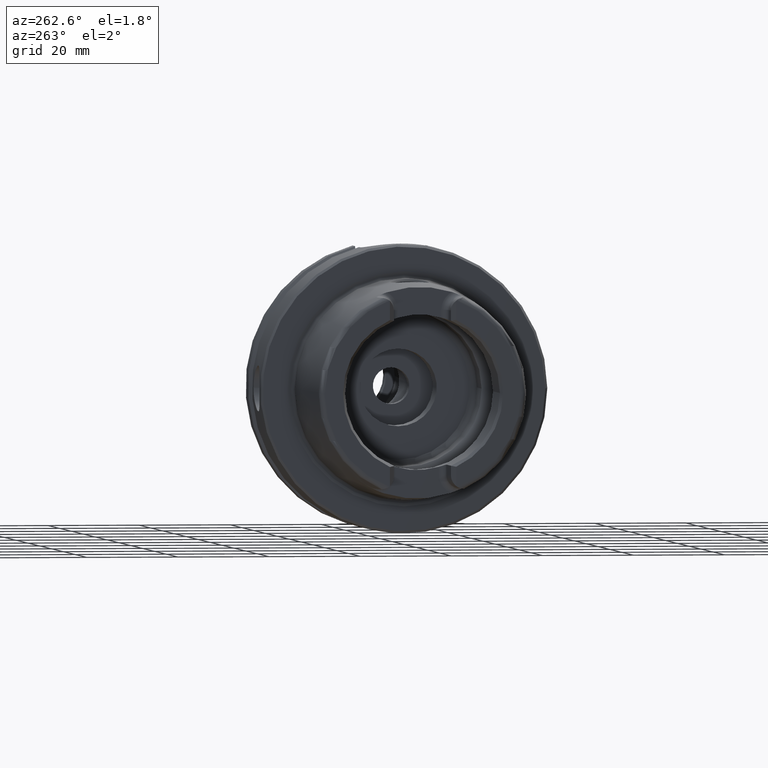
[diagram: clean part render]
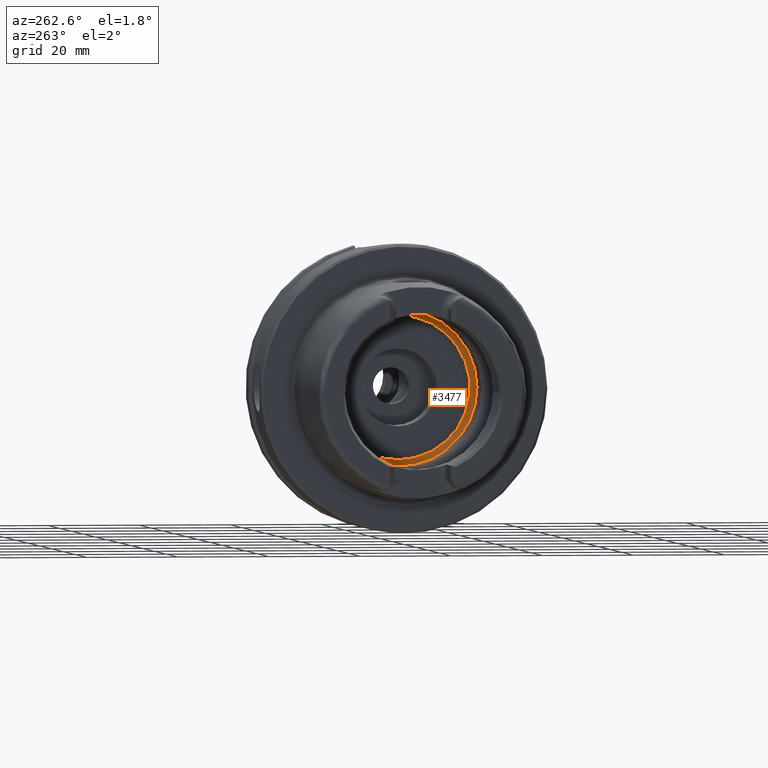
[diagram: same view with one face highlighted and labeled with its STEP entity id]
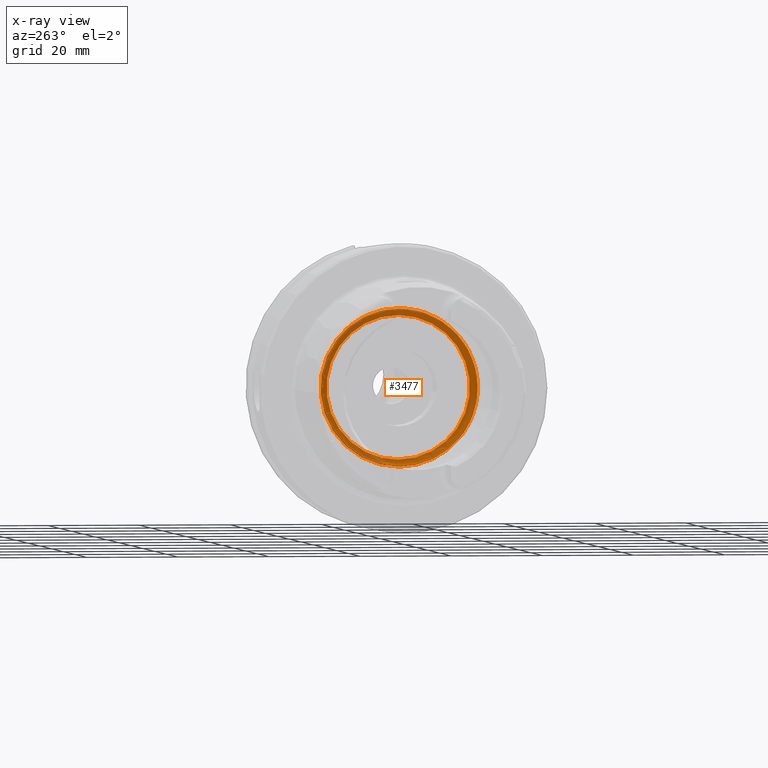
[diagram: x-ray of the same camera — body ghosted, the highlighted face saturated]
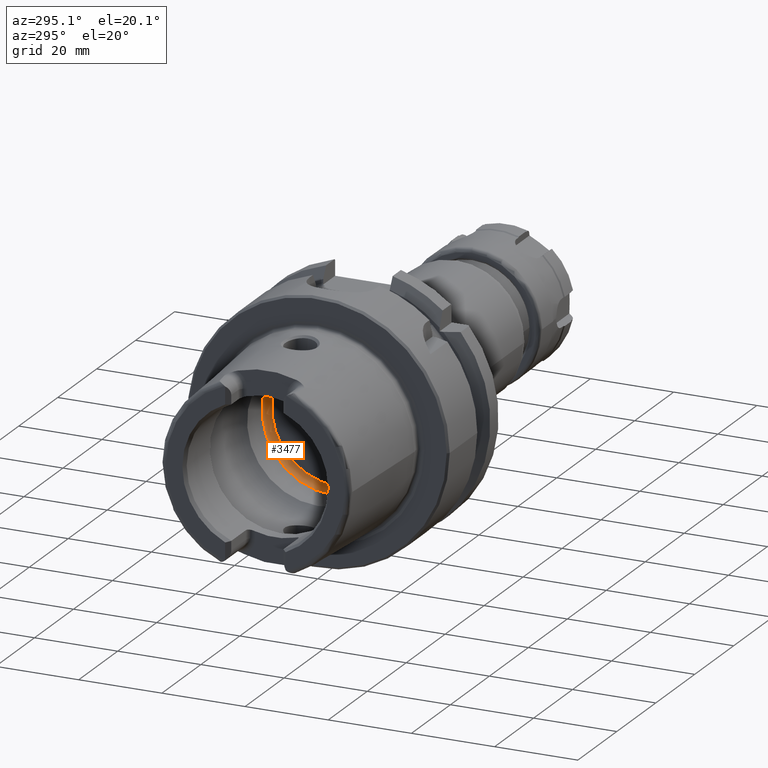
[diagram: same view with one face highlighted and labeled with its STEP entity id]
A machine part, auxiliary view. The second image highlights one B-rep face of the part: STEP entity #3477.
The next image is the same camera in x-ray: the body ghosted, the highlighted face saturated — about 47% of this face is hidden behind the body in this view.
A second angle (auxiliary view) of the same face is appended — the face is thin or edge-on in the first view.
In plain terms, the highlighted toroidal blend (fillet) surface has major radius 15.75 mm and minor (blend) radius 1.5 mm.
Its self-contained STEP definition (entity closure, byte-faithful):
#277=TOROIDAL_SURFACE('',#3874,15.75,1.5);
#456=FACE_OUTER_BOUND('',#666,.T.);
#666=EDGE_LOOP('',(#2847,#2848,#2849,#2850,#2851));
#1254=CIRCLE('',#3873,15.75);
#1255=CIRCLE('',#3875,1.5);
#1256=CIRCLE('',#3876,17.);
#1257=CIRCLE('',#3877,17.);
#1546=VERTEX_POINT('',#6542);
#1547=VERTEX_POINT('',#6545);
#1548=VERTEX_POINT('',#6547);
#2006=EDGE_CURVE('',#1546,#1546,#1254,.T.);
#2007=EDGE_CURVE('',#1546,#1547,#1255,.T.);
#2008=EDGE_CURVE('',#1547,#1548,#1256,.T.);
#2009=EDGE_CURVE('',#1548,#1547,#1257,.T.);
#2847=ORIENTED_EDGE('',*,*,#2006,.F.);
#2848=ORIENTED_EDGE('',*,*,#2007,.T.);
#2849=ORIENTED_EDGE('',*,*,#2008,.T.);
#2850=ORIENTED_EDGE('',*,*,#2009,.T.);
#2851=ORIENTED_EDGE('',*,*,#2007,.F.);
#3477=ADVANCED_FACE('',(#456),#277,.F.);
#3873=AXIS2_PLACEMENT_3D('',#6543,#4647,#4648);
#3874=AXIS2_PLACEMENT_3D('',#6544,#4649,#4650);
#3875=AXIS2_PLACEMENT_3D('',#6546,#4651,#4652);
#3876=AXIS2_PLACEMENT_3D('',#6548,#4653,#4654);
#3877=AXIS2_PLACEMENT_3D('',#6549,#4655,#4656);
#4647=DIRECTION('center_axis',(-1.,0.,0.));
#4648=DIRECTION('ref_axis',(0.,0.,1.));
#4649=DIRECTION('center_axis',(-1.,0.,0.));
#4650=DIRECTION('ref_axis',(0.,0.,1.));
#4651=DIRECTION('center_axis',(0.,1.,-1.22464679914735E-16));
#4652=DIRECTION('ref_axis',(0.,-1.22464679914735E-16,-1.));
#4653=DIRECTION('center_axis',(-1.,0.,0.));
#4654=DIRECTION('ref_axis',(0.,0.,1.));
#4655=DIRECTION('center_axis',(-1.,0.,0.));
#4656=DIRECTION('ref_axis',(0.,0.,1.));
#6542=CARTESIAN_POINT('',(10.,-1.92881870865708E-15,-15.75));
#6543=CARTESIAN_POINT('Origin',(10.,0.,0.));
#6544=CARTESIAN_POINT('Origin',(8.5,0.,0.));
#6545=CARTESIAN_POINT('',(7.67084380241115,-2.0818995585505E-15,-17.));
#6546=CARTESIAN_POINT('Origin',(8.5,-1.92881870865708E-15,-15.75));
#6547=CARTESIAN_POINT('',(7.67084380241115,-17.,2.0818995585505E-15));
#6548=CARTESIAN_POINT('Origin',(7.67084380241115,0.,0.));
#6549=CARTESIAN_POINT('Origin',(7.67084380241115,0.,0.));